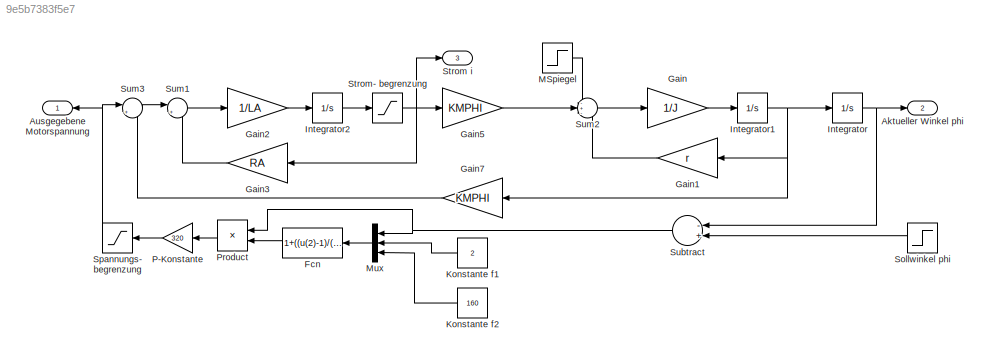
MODEL slx_9e5b7383f5e7
KIND model
BLOCK [Outport] Aktueller Winkel phi
  IconDisplay = Port number
  Port = 2
BLOCK [Outport] Ausgegebene Motorspannung 
  IconDisplay = Port number
BLOCK [Fcn] Fcn
  Expr = 1+((u(2)-1)/((u(3)*u(1))^2+1))
BLOCK [Gain] Gain
  Gain = 1/J
  OutDataTypeStr = Inherit: Inherit via internal rule
  ParamDataTypeStr = Inherit: Inherit via internal rule
  SaturateOnIntegerOverflow = off
BLOCK [Gain] Gain1
  Gain = r
  OutDataTypeStr = Inherit: Inherit via internal rule
  ParamDataTypeStr = Inherit: Inherit via internal rule
  SaturateOnIntegerOverflow = off
BLOCK [Gain] Gain2
  Gain = 1/LA
  OutDataTypeStr = Inherit: Inherit via internal rule
  ParamDataTypeStr = Inherit: Inherit via internal rule
  SaturateOnIntegerOverflow = off
BLOCK [Gain] Gain3
  Gain = RA
  OutDataTypeStr = Inherit: Inherit via internal rule
  ParamDataTypeStr = Inherit: Inherit via internal rule
  SaturateOnIntegerOverflow = off
BLOCK [Gain] Gain5
  Gain = KMPHI
  OutDataTypeStr = Inherit: Inherit via internal rule
  ParamDataTypeStr = Inherit: Inherit via internal rule
  SaturateOnIntegerOverflow = off
BLOCK [Gain] Gain7
  Gain = KMPHI
  OutDataTypeStr = Inherit: Inherit via internal rule
  ParamDataTypeStr = Inherit: Inherit via internal rule
  SaturateOnIntegerOverflow = off
BLOCK [Integrator] Integrator
  Ports = [1, 1]
BLOCK [Integrator] Integrator1
  Ports = [1, 1]
BLOCK [Integrator] Integrator2
  Ports = [1, 1]
BLOCK [Constant] Konstante f1
  Value = 2
BLOCK [Constant] Konstante f2
  Value = 160
BLOCK [Step] MSpiegel
  After = MSpiegel
  SampleTime = 0
  Time = 0
BLOCK [Mux] Mux
  DisplayOption = bar
  Inputs = 3
  Ports = [3, 1]
BLOCK [Gain] P-Konstante
  Gain = 320
  OutDataTypeStr = Inherit: Inherit via internal rule
  ParamDataTypeStr = Inherit: Inherit via internal rule
  SaturateOnIntegerOverflow = off
BLOCK [Product] Product
  InputSameDT = off
  OutDataTypeStr = Inherit: Inherit via internal rule
  Ports = [2, 1]
  SaturateOnIntegerOverflow = off
BLOCK [Step] Sollwinkel phi
  After = phi
  Before = phi
  SampleTime = 0
  Time = 100
BLOCK [Saturate] Spannungs- begrenzung
  InputPortMap = u0
  LowerLimit = -24
  Ports = [1, 1]
  UpperLimit = 24
BLOCK [Outport] Strom i
  IconDisplay = Port number
  Port = 3
BLOCK [Saturate] Strom- begrenzung
  InputPortMap = u0
  LowerLimit = -10
  Ports = [1, 1]
  UpperLimit = 10
BLOCK [Sum] Subtract
  AccumDataTypeStr = double
  InputSameDT = off
  Inputs = -+
  OutDataTypeStr = double
  Ports = [2, 1]
  SaturateOnIntegerOverflow = off
BLOCK [Sum] Sum1
  IconShape = round
  InputSameDT = off
  Inputs = |+-
  OutDataTypeStr = Inherit: Inherit via internal rule
  Ports = [2, 1]
  SaturateOnIntegerOverflow = off
BLOCK [Sum] Sum2
  IconShape = round
  InputSameDT = off
  Inputs = -+-
  OutDataTypeStr = Inherit: Inherit via internal rule
  Ports = [3, 1]
  SaturateOnIntegerOverflow = off
BLOCK [Sum] Sum3
  IconShape = round
  InputSameDT = off
  Inputs = |+-
  OutDataTypeStr = Inherit: Inherit via internal rule
  Ports = [2, 1]
  SaturateOnIntegerOverflow = off
LINE Fcn:1 -> Product:2
LINE Gain1:1 -> Sum2:3
LINE Gain2:1 -> Integrator2:1
LINE Gain3:1 -> Sum1:2
LINE Gain5:1 -> Sum2:2
LINE Gain7:1 -> Sum3:2
LINE Gain:1 -> Integrator1:1
NET Integrator1:1 -> Gain1:1, Gain7:1, Integrator:1
LINE Integrator2:1 -> Strom- begrenzung:1
NET Integrator:1 -> Aktueller Winkel phi:1, Subtract:1
LINE Konstante f1:1 -> Mux:2
LINE Konstante f2:1 -> Mux:3
LINE MSpiegel:1 -> Sum2:1
LINE Mux:1 -> Fcn:1
LINE P-Konstante:1 -> Spannungs- begrenzung:1
LINE Product:1 -> P-Konstante:1
LINE Sollwinkel phi:1 -> Subtract:2
NET Spannungs- begrenzung:1 -> Ausgegebene Motorspannung :1, Sum3:1
NET Strom- begrenzung:1 -> Gain3:1, Gain5:1, Strom i:1
NET Subtract:1 -> Mux:1, Product:1
LINE Sum1:1 -> Gain2:1
LINE Sum2:1 -> Gain:1
LINE Sum3:1 -> Sum1:1
note: NET lines group one-source signal fan-out (src -> all destinations, sorted); 1:1 wires keep LINE
